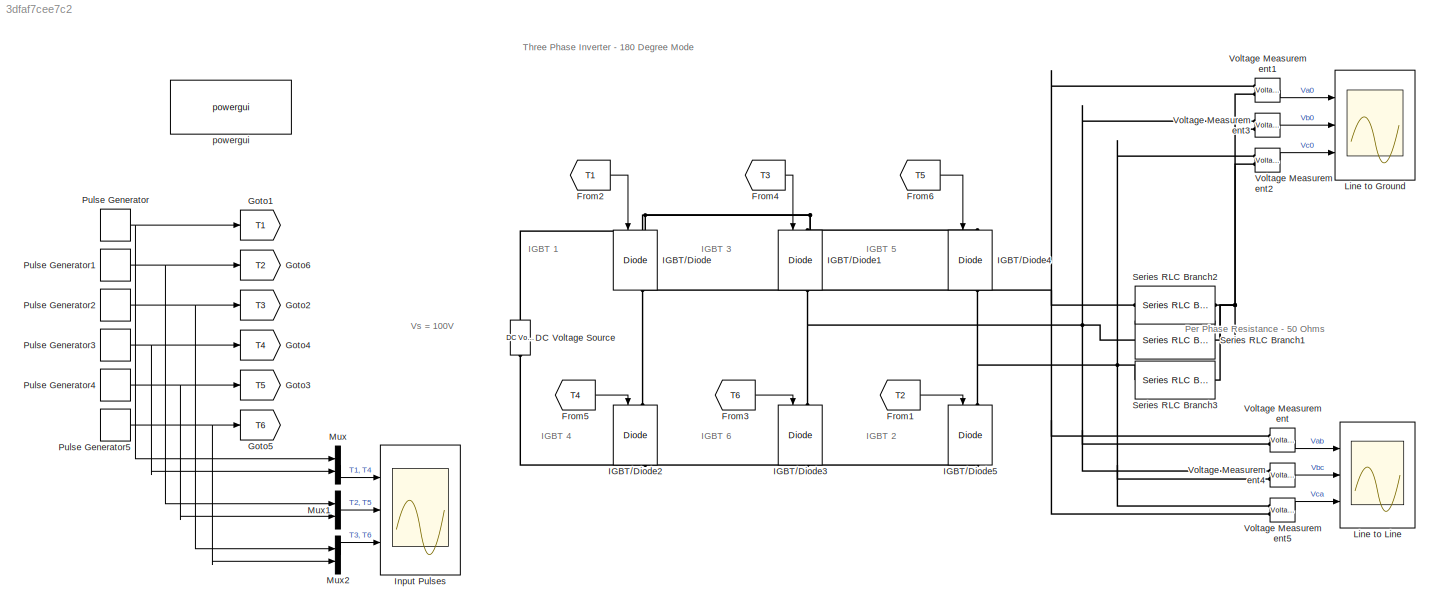
MODEL slx_3dfaf7cee7c2
KIND model
CONFIG AbsTol = auto
CONFIG EnableMultiTasking = off
CONFIG FixedStep = auto
CONFIG MaxStep = auto
CONFIG MinStep = auto
CONFIG RelTol = 1e-3
CONFIG SampleTimeConstraint = Unconstrained
CONFIG SolverName = VariableStepAuto
CONFIG StartTime = 0.0
CONFIG StopTime = 0.1
BLOCK [Reference] DC Voltage Source  REF=spsDCVoltageSourceLib/DC Voltage Source
  NameLocation = right
  Ports = [0, 0, 0, 0, 0, 1, 1]
  SourceBlock = spsDCVoltageSourceLib/DC Voltage Source
  SourceProductBaseCode = PS
  SourceType = DC Voltage Source
BLOCK [From] From1
  GotoTag = T2
BLOCK [From] From2
  GotoTag = T1
BLOCK [From] From3
  GotoTag = T6
BLOCK [From] From4
  GotoTag = T3
BLOCK [From] From5
  GotoTag = T4
BLOCK [From] From6
  GotoTag = T5
BLOCK [Goto] Goto1
  GotoTag = T1
BLOCK [Goto] Goto2
  GotoTag = T3
BLOCK [Goto] Goto3
  GotoTag = T5
BLOCK [Goto] Goto4
  GotoTag = T4
BLOCK [Goto] Goto5
  GotoTag = T6
BLOCK [Goto] Goto6
  GotoTag = T2
BLOCK [Reference] IGBT//Diode  REF=spsIGBTDiodeLib/IGBT//Diode
  NameLocation = left
  Ports = [1, 1, 0, 0, 0, 1, 1]
  SourceBlock = spsIGBTDiodeLib/IGBT//Diode
  SourceProductBaseCode = PS
  SourceType = IGBT/Diode
BLOCK [Reference] IGBT//Diode1  REF=spsIGBTDiodeLib/IGBT//Diode
  NameLocation = left
  Ports = [1, 1, 0, 0, 0, 1, 1]
  SourceBlock = spsIGBTDiodeLib/IGBT//Diode
  SourceProductBaseCode = PS
  SourceType = IGBT/Diode
BLOCK [Reference] IGBT//Diode2  REF=spsIGBTDiodeLib/IGBT//Diode
  NameLocation = left
  Ports = [1, 1, 0, 0, 0, 1, 1]
  SourceBlock = spsIGBTDiodeLib/IGBT//Diode
  SourceProductBaseCode = PS
  SourceType = IGBT/Diode
BLOCK [Reference] IGBT//Diode3  REF=spsIGBTDiodeLib/IGBT//Diode
  NameLocation = left
  Ports = [1, 1, 0, 0, 0, 1, 1]
  SourceBlock = spsIGBTDiodeLib/IGBT//Diode
  SourceProductBaseCode = PS
  SourceType = IGBT/Diode
BLOCK [Reference] IGBT//Diode4  REF=spsIGBTDiodeLib/IGBT//Diode
  NameLocation = left
  Ports = [1, 1, 0, 0, 0, 1, 1]
  SourceBlock = spsIGBTDiodeLib/IGBT//Diode
  SourceProductBaseCode = PS
  SourceType = IGBT/Diode
BLOCK [Reference] IGBT//Diode5  REF=spsIGBTDiodeLib/IGBT//Diode
  NameLocation = left
  Ports = [1, 1, 0, 0, 0, 1, 1]
  SourceBlock = spsIGBTDiodeLib/IGBT//Diode
  SourceProductBaseCode = PS
  SourceType = IGBT/Diode
BLOCK [Scope] Input Pulses
  Floating = off
  NumInputPorts = 3
  Ports = [3]
  ScopeSpecificationString = Simulink.scopes.TimeScopeBlockCfg('CurrentConfiguration', extmgr.ConfigurationSet(extmgr.Configuration('Core','General UI',true,'FigureColor',[1 1 1]),extmgr.Configuration('Core','Source UI',true),extmgr.Configuration('Sources','WiredSimulink',true,'DataLogging',true,'DataLoggingSaveFormat','StructureWithTime'),extmgr.Configuration('Visuals','Time Domain',true,'SerializedDisplays',{struct('MinYLim...<+3386ch>
BLOCK [Scope] Line to Ground 
  Floating = off
  NumInputPorts = 3
  Ports = [3]
  ScopeSpecificationString = Simulink.scopes.TimeScopeBlockCfg('CurrentConfiguration', extmgr.ConfigurationSet(extmgr.Configuration('Core','General UI',true,'FigureColor',[1 1 1]),extmgr.Configuration('Core','Source UI',true),extmgr.Configuration('Sources','WiredSimulink',true,'DataLogging',true,'DataLoggingSaveFormat','StructureWithTime','DataLoggingVariableName','ScopeData1'),extmgr.Configuration('Visuals','Time Domain',tru...<+3093ch>
BLOCK [Scope] Line to Line
  Floating = off
  NumInputPorts = 3
  Ports = [3]
  ScopeSpecificationString = Simulink.scopes.TimeScopeBlockCfg('CurrentConfiguration', extmgr.ConfigurationSet(extmgr.Configuration('Core','General UI',true,'FigureColor',[1 1 1]),extmgr.Configuration('Core','Source UI',true),extmgr.Configuration('Sources','WiredSimulink',true,'DataLogging',true,'DataLoggingSaveFormat','StructureWithTime','DataLoggingVariableName','ScopeData2'),extmgr.Configuration('Visuals','Time Domain',tru...<+3094ch>
BLOCK [Mux] Mux
  DisplayOption = bar
  Inputs = 2
  Ports = [2, 1]
BLOCK [Mux] Mux1
  DisplayOption = bar
  Inputs = 2
  Ports = [2, 1]
BLOCK [Mux] Mux2
  DisplayOption = bar
  Inputs = 2
  Ports = [2, 1]
BLOCK [DiscretePulseGenerator] Pulse Generator
  Period = 0.02
  PhaseDelay = (0/360)*0.02
  Ports = [0, 1]
  PulseType = Time based
  PulseWidth = (180/360)*100
BLOCK [DiscretePulseGenerator] Pulse Generator1
  Period = 0.02
  PhaseDelay = (60/360)*0.02
  Ports = [0, 1]
  PulseType = Time based
  PulseWidth = (180/360)*100
BLOCK [DiscretePulseGenerator] Pulse Generator2
  Period = 0.02
  PhaseDelay = (120/360)*0.02
  Ports = [0, 1]
  PulseType = Time based
  PulseWidth = (180/360)*100
BLOCK [DiscretePulseGenerator] Pulse Generator3
  Period = 0.02
  PhaseDelay = (180/360)*0.02
  Ports = [0, 1]
  PulseType = Time based
  PulseWidth = (180/360)*100
BLOCK [DiscretePulseGenerator] Pulse Generator4
  Period = 0.02
  PhaseDelay = (240/360)*0.02
  Ports = [0, 1]
  PulseType = Time based
  PulseWidth = (180/360)*100
BLOCK [DiscretePulseGenerator] Pulse Generator5
  Period = 0.02
  PhaseDelay = (300/360)*0.02
  Ports = [0, 1]
  PulseType = Time based
  PulseWidth = (180/360)*100
BLOCK [Reference] Series RLC Branch1  REF=spsSeriesRLCBranchLib/Series RLC Branch
  Ports = [0, 0, 0, 0, 0, 1, 1]
  SourceBlock = spsSeriesRLCBranchLib/Series RLC Branch
  SourceProductBaseCode = PS
  SourceType = Series RLC Branch
BLOCK [Reference] Series RLC Branch2  REF=spsSeriesRLCBranchLib/Series RLC Branch
  Ports = [0, 0, 0, 0, 0, 1, 1]
  SourceBlock = spsSeriesRLCBranchLib/Series RLC Branch
  SourceProductBaseCode = PS
  SourceType = Series RLC Branch
BLOCK [Reference] Series RLC Branch3  REF=spsSeriesRLCBranchLib/Series RLC Branch
  Ports = [0, 0, 0, 0, 0, 1, 1]
  SourceBlock = spsSeriesRLCBranchLib/Series RLC Branch
  SourceProductBaseCode = PS
  SourceType = Series RLC Branch
BLOCK [Reference] Voltage Measurement  REF=spsVoltageMeasurementLib/Voltage Measurement
  Ports = [0, 1, 0, 0, 0, 2]
  SourceBlock = spsVoltageMeasurementLib/Voltage Measurement
  SourceProductBaseCode = PS
  SourceType = Voltage Measurement
  UserDataPersistent = on
BLOCK [Reference] Voltage Measurement1  REF=spsVoltageMeasurementLib/Voltage Measurement
  Ports = [0, 1, 0, 0, 0, 2]
  SourceBlock = spsVoltageMeasurementLib/Voltage Measurement
  SourceProductBaseCode = PS
  SourceType = Voltage Measurement
  UserDataPersistent = on
BLOCK [Reference] Voltage Measurement2  REF=spsVoltageMeasurementLib/Voltage Measurement
  Ports = [0, 1, 0, 0, 0, 2]
  SourceBlock = spsVoltageMeasurementLib/Voltage Measurement
  SourceProductBaseCode = PS
  SourceType = Voltage Measurement
  UserDataPersistent = on
BLOCK [Reference] Voltage Measurement3  REF=spsVoltageMeasurementLib/Voltage Measurement
  Ports = [0, 1, 0, 0, 0, 2]
  SourceBlock = spsVoltageMeasurementLib/Voltage Measurement
  SourceProductBaseCode = PS
  SourceType = Voltage Measurement
  UserDataPersistent = on
BLOCK [Reference] Voltage Measurement4  REF=spsVoltageMeasurementLib/Voltage Measurement
  Ports = [0, 1, 0, 0, 0, 2]
  SourceBlock = spsVoltageMeasurementLib/Voltage Measurement
  SourceProductBaseCode = PS
  SourceType = Voltage Measurement
  UserDataPersistent = on
BLOCK [Reference] Voltage Measurement5  REF=spsVoltageMeasurementLib/Voltage Measurement
  Ports = [0, 1, 0, 0, 0, 2]
  SourceBlock = spsVoltageMeasurementLib/Voltage Measurement
  SourceProductBaseCode = PS
  SourceType = Voltage Measurement
  UserDataPersistent = on
BLOCK [Reference] powergui  REF=spspowerguiLib/powergui
  Ports = []
  Priority = 1
  SourceBlock = spspowerguiLib/powergui
  SourceProductBaseCode = PS
  SourceType = PSB option menu block
ANNOTATION (root): Three Phase Inverter - 180 Degree Mode
ANNOTATION (root): IGBT 1
ANNOTATION (root): IGBT 2
ANNOTATION (root): IGBT 3
ANNOTATION (root): IGBT 4
ANNOTATION (root): IGBT 5
ANNOTATION (root): IGBT 6
ANNOTATION (root): Per Phase Resistance - 50 Ohms
ANNOTATION (root): Vs = 100V
LINE From1:1 -> IGBT//Diode5:1
LINE From2:1 -> IGBT//Diode:1
LINE From3:1 -> IGBT//Diode3:1
LINE From4:1 -> IGBT//Diode1:1
LINE From5:1 -> IGBT//Diode2:1
LINE From6:1 -> IGBT//Diode4:1
LINE Mux1:1 -> Input Pulses:2
LINE Mux2:1 -> Input Pulses:3
LINE Mux:1 -> Input Pulses:1
NET Pulse Generator1:1 -> Goto6:1, Mux1:1
NET Pulse Generator2:1 -> Goto2:1, Mux2:1
NET Pulse Generator3:1 -> Goto4:1, Mux:2
NET Pulse Generator4:1 -> Goto3:1, Mux1:2
NET Pulse Generator5:1 -> Goto5:1, Mux2:2
NET Pulse Generator:1 -> Goto1:1, Mux:1
LINE Voltage Measurement1:1 -> Line to Ground :1
LINE Voltage Measurement2:1 -> Line to Ground :3
LINE Voltage Measurement3:1 -> Line to Ground :2
LINE Voltage Measurement4:1 -> Line to Line:2
LINE Voltage Measurement5:1 -> Line to Line:3
LINE Voltage Measurement:1 -> Line to Line:1
PNET net1: DC Voltage Source:LConn1 -- IGBT//Diode2:RConn1 -- IGBT//Diode3:RConn1 -- IGBT//Diode5:RConn1
PNET net2: DC Voltage Source:RConn1 -- IGBT//Diode1:LConn1 -- IGBT//Diode4:LConn1 -- IGBT//Diode:LConn1
PNET net3: IGBT//Diode1:RConn1 -- IGBT//Diode3:LConn1 -- Series RLC Branch1:LConn1 -- Voltage Measurement3:LConn1 -- Voltage Measurement4:LConn1 -- Voltage Measurement:LConn2
PNET net4: IGBT//Diode2:LConn1 -- IGBT//Diode:RConn1 -- Series RLC Branch2:LConn1 -- Voltage Measurement1:LConn1 -- Voltage Measurement5:LConn2 -- Voltage Measurement:LConn1
PNET net5: IGBT//Diode4:RConn1 -- IGBT//Diode5:LConn1 -- Series RLC Branch3:LConn1 -- Voltage Measurement2:LConn1 -- Voltage Measurement4:LConn2 -- Voltage Measurement5:LConn1
PNET net6: Series RLC Branch1:RConn1 -- Series RLC Branch2:RConn1 -- Series RLC Branch3:RConn1 -- Voltage Measurement1:LConn2 -- Voltage Measurement2:LConn2 -- Voltage Measurement3:LConn2
note: NET lines group one-source signal fan-out (src -> all destinations, sorted); 1:1 wires keep LINE; PNET lines group multi-terminal physical nets as a canonical sorted terminal list (undirected conserving connections); 2-terminal nets keep the pairwise PLINE form
